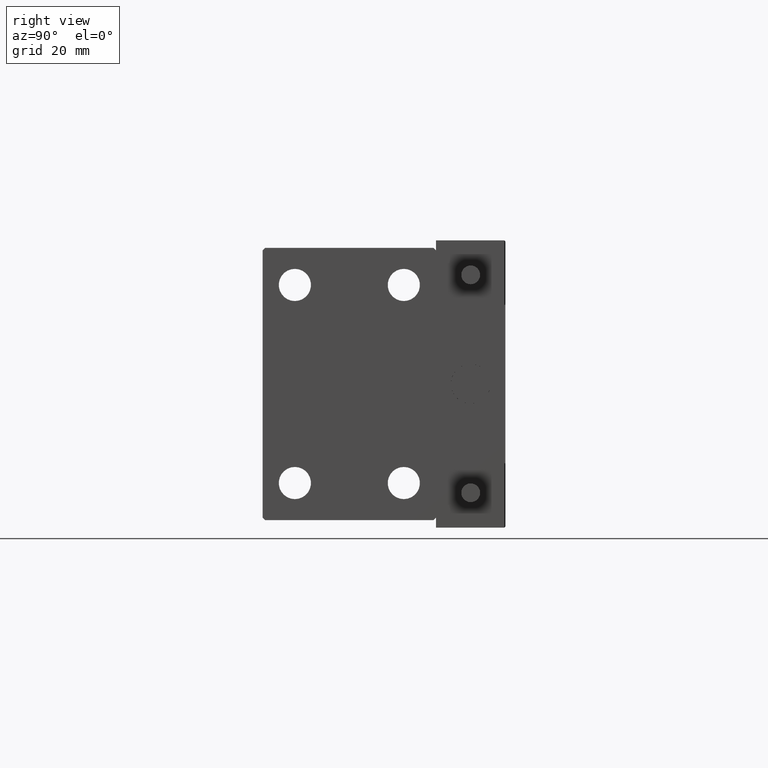
[diagram: clean part render]
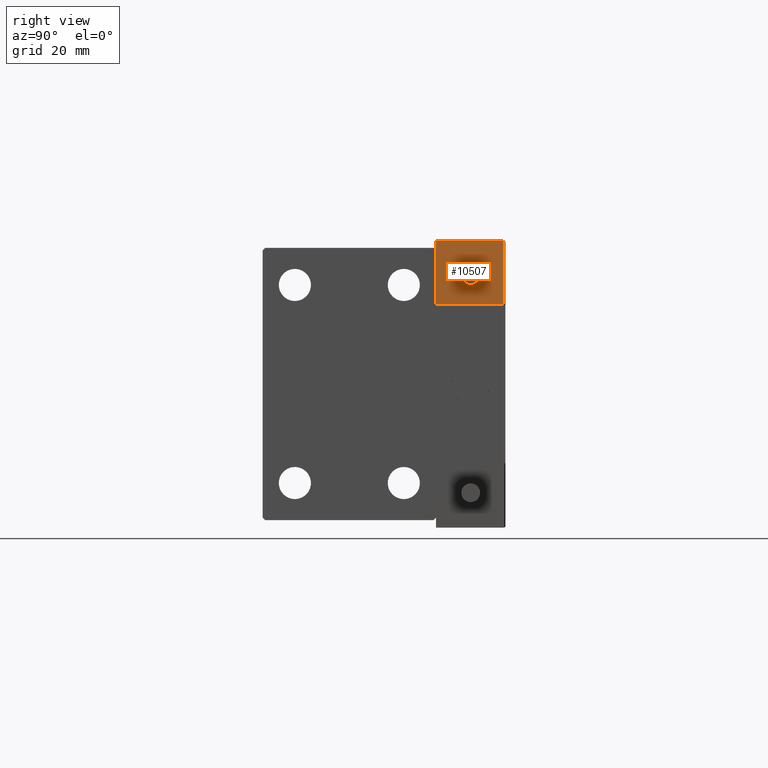
[diagram: same view with one face highlighted and labeled with its STEP entity id]
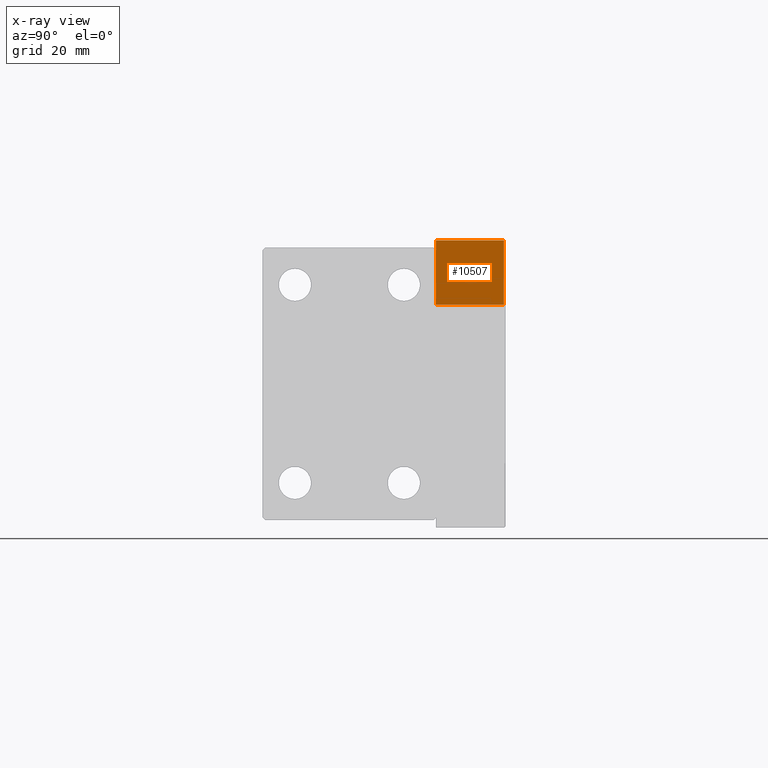
[diagram: x-ray of the same camera — body ghosted, the highlighted face saturated]
A machine part, right view. The second image highlights one B-rep face of the part: STEP entity #10507.
The next image is the same camera in x-ray: the body ghosted, the highlighted face saturated — about 6% of this face is hidden behind the body in this view.
In plain terms, the highlighted planar face has unit normal (-1, 0, 0).
Its self-contained STEP definition (entity closure, byte-faithful):
#366 = VERTEX_POINT ( 'NONE', #42802 ) ;
#934 = DIRECTION ( 'NONE',  ( -0.000000000000000000, -0.000000000000000000, -1.000000000000000000 ) ) ;
#2728 = CARTESIAN_POINT ( 'NONE',  ( -26.99999999999994671, 7.000000000000005329, 13.70000000000000107 ) ) ;
#5105 = EDGE_CURVE ( 'NONE', #27529, #40613, #48378, .T. ) ;
#5460 = CARTESIAN_POINT ( 'NONE',  ( -26.99999999999993605, 20.00000000000002132, 13.70000000000000107 ) ) ;
#10288 = LINE ( 'NONE', #49556, #30605 ) ;
#10507 = ADVANCED_FACE ( 'NONE', ( #18306 ), #41386, .F. ) ;
#11102 = VECTOR ( 'NONE', #934, 1000.000000000000000 ) ;
#11470 = DIRECTION ( 'NONE',  ( 1.000000000000000000, -8.006416042969869188E-16, 0.000000000000000000 ) ) ;
#13122 = LINE ( 'NONE', #36442, #11102 ) ;
#13878 = AXIS2_PLACEMENT_3D ( 'NONE', #45436, #11470, #41867 ) ;
#15102 = ORIENTED_EDGE ( 'NONE', *, *, #33647, .T. ) ;
#15648 = DIRECTION ( 'NONE',  ( -0.000000000000000000, -0.000000000000000000, -1.000000000000000000 ) ) ;
#16916 = VECTOR ( 'NONE', #15648, 1000.000000000000000 ) ;
#18306 = FACE_OUTER_BOUND ( 'NONE', #45533, .T. ) ;
#19131 = VECTOR ( 'NONE', #36410, 1000.000000000000000 ) ;
#19163 = ORIENTED_EDGE ( 'NONE', *, *, #5105, .F. ) ;
#27529 = VERTEX_POINT ( 'NONE', #2728 ) ;
#28375 = EDGE_CURVE ( 'NONE', #366, #45177, #13122, .T. ) ;
#30605 = VECTOR ( 'NONE', #41213, 1000.000000000000000 ) ;
#31663 = CARTESIAN_POINT ( 'NONE',  ( -26.99999999999994671, 7.000000000000005329, 0.000000000000000000 ) ) ;
#32424 = ORIENTED_EDGE ( 'NONE', *, *, #28375, .T. ) ;
#33647 = EDGE_CURVE ( 'NONE', #45177, #40613, #10288, .T. ) ;
#36410 = DIRECTION ( 'NONE',  ( 8.006416042969869188E-16, 1.000000000000000000, -0.000000000000000000 ) ) ;
#36442 = CARTESIAN_POINT ( 'NONE',  ( -26.99999999999993605, 20.00000000000002132, 14.00000000000000000 ) ) ;
#37718 = CARTESIAN_POINT ( 'NONE',  ( -26.99999999999994671, 7.000000000000005329, 14.00000000000000000 ) ) ;
#39914 = CARTESIAN_POINT ( 'NONE',  ( -26.99999999999993605, 20.00000000000002132, 0.000000000000000000 ) ) ;
#40428 = ORIENTED_EDGE ( 'NONE', *, *, #42521, .T. ) ;
#40613 = VERTEX_POINT ( 'NONE', #31663 ) ;
#41213 = DIRECTION ( 'NONE',  ( -8.006416042969869188E-16, -1.000000000000000000, 0.000000000000000000 ) ) ;
#41386 = PLANE ( 'NONE',  #13878 ) ;
#41867 = DIRECTION ( 'NONE',  ( 8.006416042969869188E-16, 1.000000000000000000, 0.000000000000000000 ) ) ;
#42521 = EDGE_CURVE ( 'NONE', #27529, #366, #44007, .T. ) ;
#42802 = CARTESIAN_POINT ( 'NONE',  ( -26.99999999999993605, 20.00000000000002132, 13.70000000000000107 ) ) ;
#44007 = LINE ( 'NONE', #5460, #19131 ) ;
#45177 = VERTEX_POINT ( 'NONE', #39914 ) ;
#45436 = CARTESIAN_POINT ( 'NONE',  ( -26.99999999999993605, 20.00000000000002132, 14.00000000000000000 ) ) ;
#45533 = EDGE_LOOP ( 'NONE', ( #19163, #40428, #32424, #15102 ) ) ;
#48378 = LINE ( 'NONE', #37718, #16916 ) ;
#49556 = CARTESIAN_POINT ( 'NONE',  ( -26.99999999999993605, 20.00000000000002132, 0.000000000000000000 ) ) ;